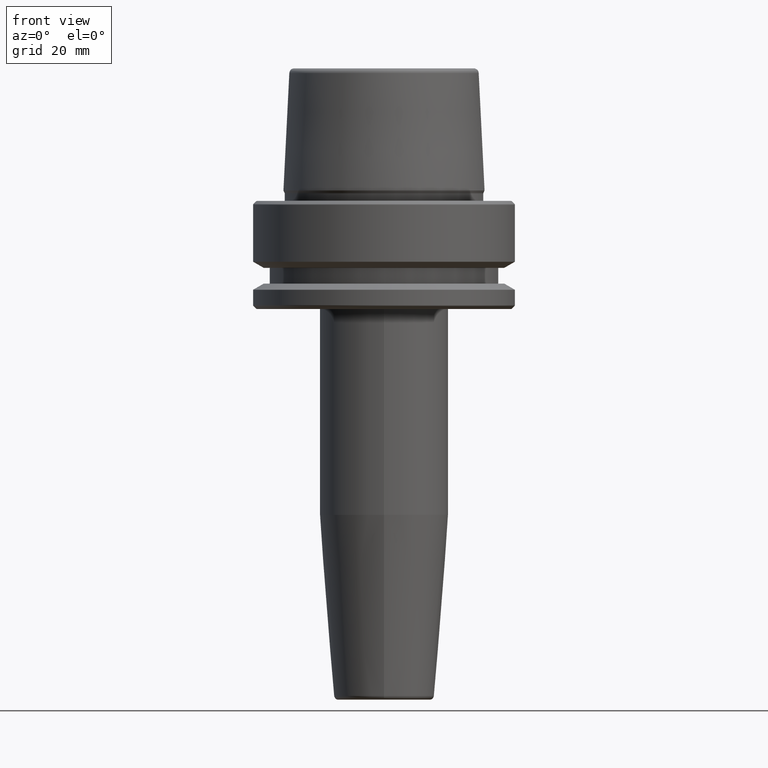
[diagram: clean part render]
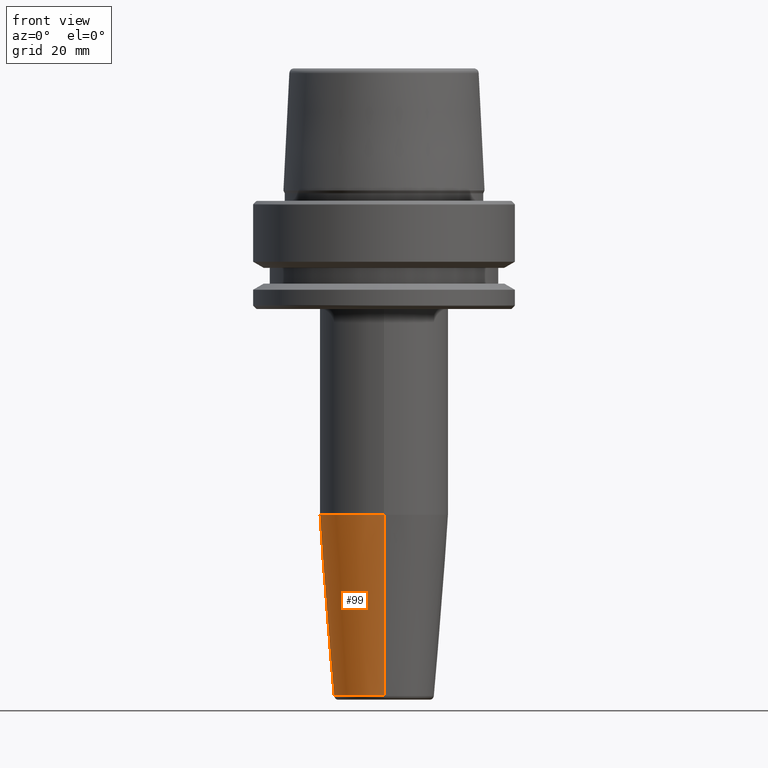
[diagram: same view with one face highlighted and labeled with its STEP entity id]
A machine part, front view. The second image highlights one B-rep face of the part: STEP entity #99.
In plain terms, the highlighted conical surface has half-angle 4.5 deg.
Its self-contained STEP definition (entity closure, byte-faithful):
#5 = VECTOR ( 'NONE', #713, 1000.000000000000000 ) ;
#21 = CARTESIAN_POINT ( 'NONE',  ( 1.898202538678396800E-015, 15.49999999999999600, -75.52828342338449400 ) ) ;
#99 = ADVANCED_FACE ( 'NONE', ( #685 ), #594, .T. ) ;
#109 = EDGE_CURVE ( 'NONE', #547, #215, #205, .T. ) ;
#121 = AXIS2_PLACEMENT_3D ( 'NONE', #935, #991, #806 ) ;
#128 = EDGE_CURVE ( 'NONE', #798, #547, #876, .T. ) ;
#205 = LINE ( 'NONE', #865, #1118 ) ;
#215 = VERTEX_POINT ( 'NONE', #21 ) ;
#218 = ORIENTED_EDGE ( 'NONE', *, *, #128, .F. ) ;
#334 = EDGE_CURVE ( 'NONE', #621, #215, #989, .T. ) ;
#368 = ORIENTED_EDGE ( 'NONE', *, *, #832, .T. ) ;
#404 = DIRECTION ( 'NONE',  ( 0.0000000000000000000, -1.000000000000000000, 0.0000000000000000000 ) ) ;
#420 = CARTESIAN_POINT ( 'NONE',  ( 0.0000000000000000000, -15.49999999999999300, -75.52828342338449400 ) ) ;
#480 = AXIS2_PLACEMENT_3D ( 'NONE', #596, #1163, #855 ) ;
#514 = DIRECTION ( 'NONE',  ( 9.608468044709221400E-018, 0.07845909572783765800, 0.9969173337331286300 ) ) ;
#530 = ORIENTED_EDGE ( 'NONE', *, *, #334, .T. ) ;
#547 = VERTEX_POINT ( 'NONE', #1156 ) ;
#594 = CONICAL_SURFACE ( 'NONE', #612, 15.49999999999999500, 0.07853981633973757000 ) ;
#596 = CARTESIAN_POINT ( 'NONE',  ( 0.0000000000000000000, 3.637922457483541700E-015, -119.0784590957278200 ) ) ;
#612 = AXIS2_PLACEMENT_3D ( 'NONE', #664, #1073, #404 ) ;
#621 = VERTEX_POINT ( 'NONE', #977 ) ;
#664 = CARTESIAN_POINT ( 'NONE',  ( 0.0000000000000000000, 1.935786822182258300E-015, -75.52828342338449400 ) ) ;
#685 = FACE_OUTER_BOUND ( 'NONE', #960, .T. ) ;
#713 = DIRECTION ( 'NONE',  ( 0.0000000000000000000, -0.07845909572783772700, 0.9969173337331285200 ) ) ;
#798 = VERTEX_POINT ( 'NONE', #1120 ) ;
#806 = DIRECTION ( 'NONE',  ( 0.0000000000000000000, 1.000000000000000000, 0.0000000000000000000 ) ) ;
#832 = EDGE_CURVE ( 'NONE', #798, #621, #907, .T. ) ;
#855 = DIRECTION ( 'NONE',  ( 0.0000000000000000000, 1.000000000000000000, 0.0000000000000000000 ) ) ;
#865 = CARTESIAN_POINT ( 'NONE',  ( 1.898202538678396800E-015, 15.49999999999999600, -75.52828342338449400 ) ) ;
#876 = CIRCLE ( 'NONE', #480, 12.07252684207491800 ) ;
#907 = LINE ( 'NONE', #420, #5 ) ;
#935 = CARTESIAN_POINT ( 'NONE',  ( 0.0000000000000000000, 1.935786822182258300E-015, -75.52828342338449400 ) ) ;
#960 = EDGE_LOOP ( 'NONE', ( #1021, #218, #368, #530 ) ) ;
#977 = CARTESIAN_POINT ( 'NONE',  ( 0.0000000000000000000, -15.49999999999999300, -75.52828342338449400 ) ) ;
#989 = CIRCLE ( 'NONE', #121, 15.49999999999999500 ) ;
#991 = DIRECTION ( 'NONE',  ( -0.0000000000000000000, 3.908447231321341700E-017, -1.000000000000000000 ) ) ;
#1021 = ORIENTED_EDGE ( 'NONE', *, *, #109, .F. ) ;
#1073 = DIRECTION ( 'NONE',  ( 0.0000000000000000000, -3.908447231321341700E-017, 1.000000000000000000 ) ) ;
#1118 = VECTOR ( 'NONE', #514, 999.9999999999998900 ) ;
#1120 = CARTESIAN_POINT ( 'NONE',  ( 1.478458135476755100E-015, -12.07252684207491300, -119.0784590957278200 ) ) ;
#1156 = CARTESIAN_POINT ( 'NONE',  ( 0.0000000000000000000, 12.07252684207492000, -119.0784590957278200 ) ) ;
#1163 = DIRECTION ( 'NONE',  ( -0.0000000000000000000, 3.908447231321341700E-017, -1.000000000000000000 ) ) ;